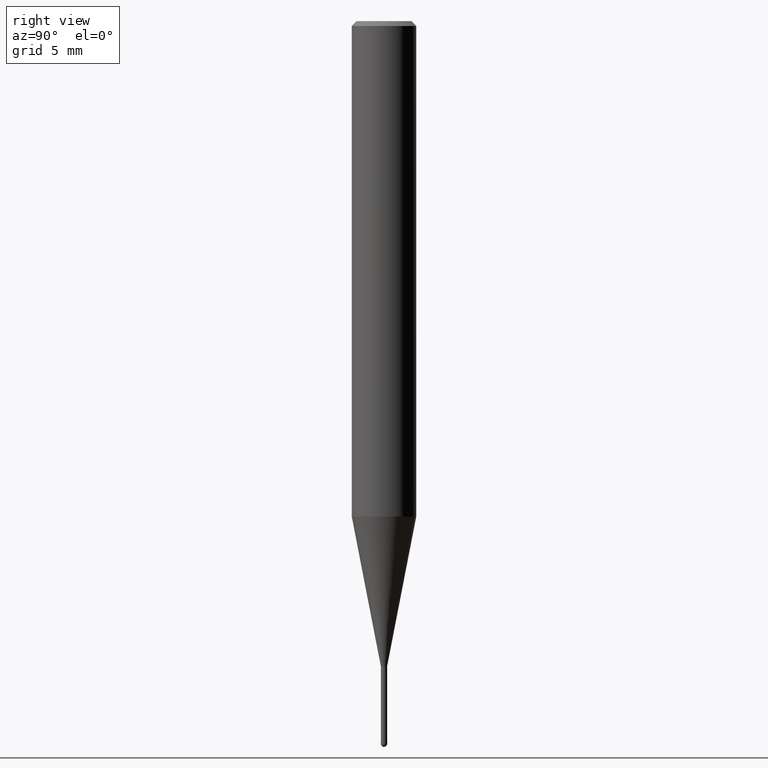
[diagram: clean part render]
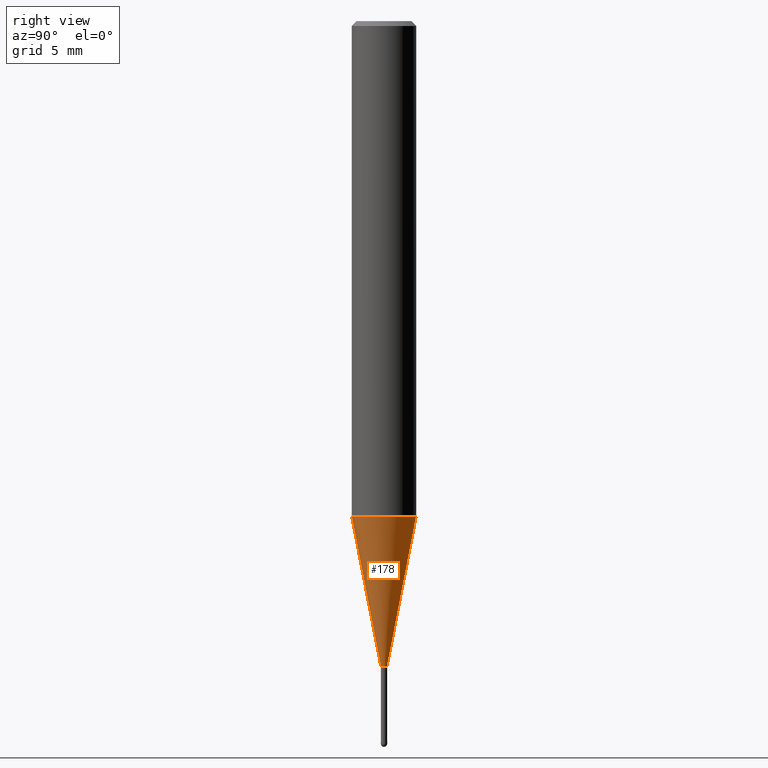
[diagram: same view with one face highlighted and labeled with its STEP entity id]
A machine part, right view. The second image highlights one B-rep face of the part: STEP entity #178.
In plain terms, the highlighted conical surface has half-angle 11 deg.
Its self-contained STEP definition (entity closure, byte-faithful):
#128=EDGE_CURVE('',#200,#174,#273,.T.);
#154=EDGE_CURVE('',#174,#188,#302,.T.);
#170=EDGE_CURVE('',#194,#200,#319,.T.);
#174=VERTEX_POINT('',#324);
#178=ADVANCED_FACE('',(#328),#329,.T.);
#188=VERTEX_POINT('',#341);
#194=VERTEX_POINT('',#348);
#200=VERTEX_POINT('',#355);
#208=EDGE_CURVE('',#194,#188,#365,.T.);
#273=CIRCLE('',#432,0.19495);
#302=LINE('',#470,#471);
#319=LINE('',#493,#494);
#324=CARTESIAN_POINT('',(2.38737008677672E-017,-0.19495,-40.0));
#328=FACE_OUTER_BOUND('',#505,.T.);
#329=CONICAL_SURFACE('',#506,1.09745,0.191984604054908);
#341=CARTESIAN_POINT('',(2.44915147732706E-016,-1.99995,-30.714));
#348=CARTESIAN_POINT('',(0.0,1.99995,-30.714));
#355=CARTESIAN_POINT('',(0.0,0.19495,-40.0));
#365=CIRCLE('',#548,1.99995);
#432=AXIS2_PLACEMENT_3D('',#603,#604,#605);
#470=CARTESIAN_POINT('',(1.34394424300237E-016,-1.09745,-35.357));
#471=VECTOR('',#641,1.0);
#493=CARTESIAN_POINT('',(-1.34394424300237E-016,1.09745,-35.357));
#494=VECTOR('',#656,1.0);
#505=EDGE_LOOP('',(#665,#666,#667,#668));
#506=AXIS2_PLACEMENT_3D('',#669,#670,#671);
#548=AXIS2_PLACEMENT_3D('',#725,#726,#727);
#603=CARTESIAN_POINT('',(0.0,0.0,-40.0));
#604=DIRECTION('',(0.0,0.0,-1.0));
#605=DIRECTION('',(0.0,1.0,0.0));
#641=DIRECTION('',(2.33663968307108E-017,-0.190807411359389,0.981627491348082));
#656=DIRECTION('',(2.33663968307108E-017,-0.190807411359389,-0.981627491348082));
#665=ORIENTED_EDGE('',*,*,#170,.F.);
#666=ORIENTED_EDGE('',*,*,#208,.T.);
#667=ORIENTED_EDGE('',*,*,#154,.F.);
#668=ORIENTED_EDGE('',*,*,#128,.F.);
#669=CARTESIAN_POINT('',(0.0,0.0,-35.357));
#670=DIRECTION('',(-0.0,-0.0,1.0));
#671=DIRECTION('',(0.0,1.0,0.0));
#725=CARTESIAN_POINT('',(0.0,0.0,-30.714));
#726=DIRECTION('',(0.0,0.0,-1.0));
#727=DIRECTION('',(0.0,1.0,0.0));